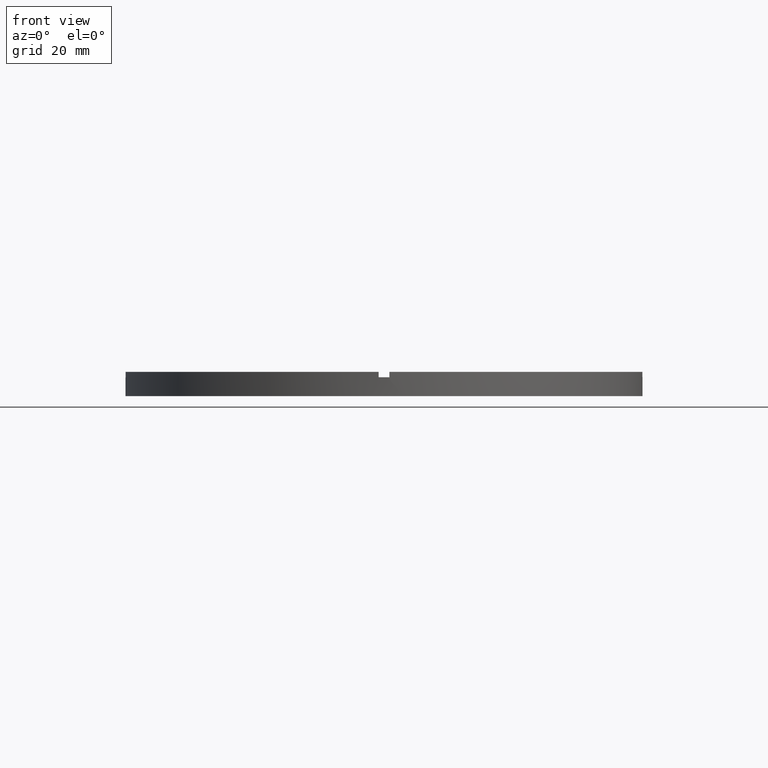
[diagram: clean part render]
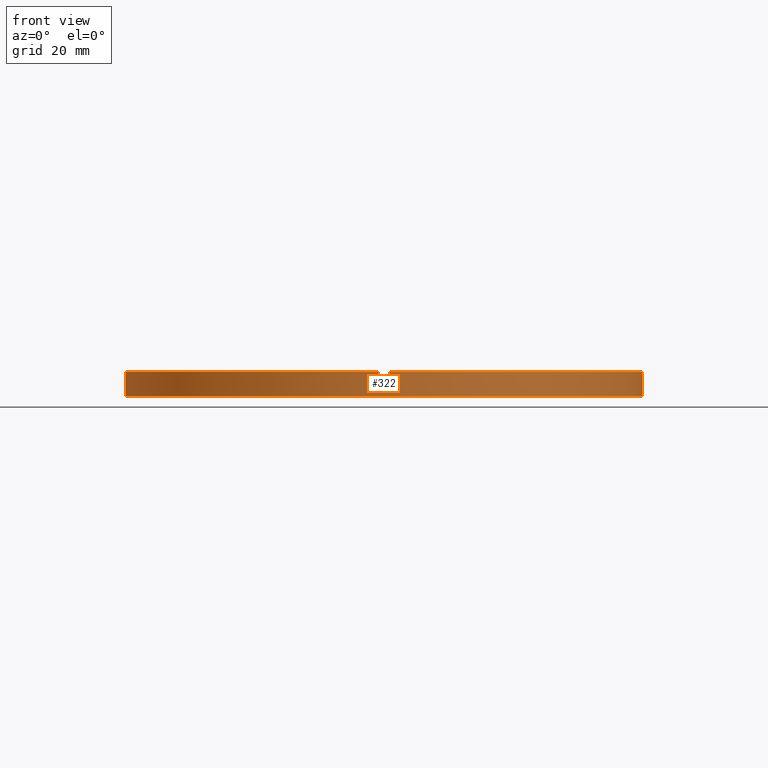
[diagram: same view with one face highlighted and labeled with its STEP entity id]
A machine part, front view. The second image highlights one B-rep face of the part: STEP entity #322.
In plain terms, the highlighted cylindrical surface (partial cylindrical patch) has radius 48 mm, axis along (-0, -0, -1).
Its self-contained STEP definition (entity closure, byte-faithful):
#1 = VERTEX_POINT ( 'NONE', #412 ) ;
#3 = CIRCLE ( 'NONE', #638, 48.00000000000000711 ) ;
#11 = EDGE_LOOP ( 'NONE', ( #658, #297, #229, #662, #458, #395, #508, #664, #455, #175, #448, #484 ) ) ;
#26 = CARTESIAN_POINT ( 'NONE',  ( 48.00000000000000711, 5.878304635907296578E-15, 4.500000000000000000 ) ) ;
#35 = LINE ( 'NONE', #26, #320 ) ;
#47 = DIRECTION ( 'NONE',  ( 0.000000000000000000, 0.000000000000000000, 1.000000000000000000 ) ) ;
#49 = DIRECTION ( 'NONE',  ( 1.000000000000000000, 0.000000000000000000, 0.000000000000000000 ) ) ;
#51 = CARTESIAN_POINT ( 'NONE',  ( -1.000000000000157208, -47.98958220280731268, 4.500000000000000000 ) ) ;
#70 = CARTESIAN_POINT ( 'NONE',  ( 0.000000000000000000, 0.000000000000000000, 0.000000000000000000 ) ) ;
#74 = DIRECTION ( 'NONE',  ( -0.000000000000000000, -0.000000000000000000, -1.000000000000000000 ) ) ;
#79 = VECTOR ( 'NONE', #678, 1000.000000000000000 ) ;
#102 = VECTOR ( 'NONE', #185, 1000.000000000000000 ) ;
#104 = DIRECTION ( 'NONE',  ( 1.000000000000000000, 0.000000000000000000, 0.000000000000000000 ) ) ;
#113 = CIRCLE ( 'NONE', #639, 48.00000000000000711 ) ;
#119 = CARTESIAN_POINT ( 'NONE',  ( -47.98958220280731268, -1.000000000000030864, 4.500000000000000000 ) ) ;
#139 = VERTEX_POINT ( 'NONE', #245 ) ;
#155 = VERTEX_POINT ( 'NONE', #444 ) ;
#157 = EDGE_CURVE ( 'NONE', #1, #731, #388, .T. ) ;
#158 = DIRECTION ( 'NONE',  ( -1.000000000000000000, 0.000000000000000000, 0.000000000000000000 ) ) ;
#160 = DIRECTION ( 'NONE',  ( 0.000000000000000000, 0.000000000000000000, 1.000000000000000000 ) ) ;
#166 = VERTEX_POINT ( 'NONE', #332 ) ;
#175 = ORIENTED_EDGE ( 'NONE', *, *, #646, .F. ) ;
#177 = EDGE_CURVE ( 'NONE', #429, #462, #113, .T. ) ;
#185 = DIRECTION ( 'NONE',  ( -0.000000000000000000, -0.000000000000000000, -1.000000000000000000 ) ) ;
#189 = CARTESIAN_POINT ( 'NONE',  ( 48.00000000000000711, 5.878304635907296578E-15, 3.499999999999999556 ) ) ;
#196 = VERTEX_POINT ( 'NONE', #189 ) ;
#197 = AXIS2_PLACEMENT_3D ( 'NONE', #70, #160, #235 ) ;
#210 = VERTEX_POINT ( 'NONE', #774 ) ;
#222 = VECTOR ( 'NONE', #350, 1000.000000000000000 ) ;
#226 = CIRCLE ( 'NONE', #324, 48.00000000000000711 ) ;
#229 = ORIENTED_EDGE ( 'NONE', *, *, #629, .T. ) ;
#235 = DIRECTION ( 'NONE',  ( 1.000000000000000000, 0.000000000000000000, 0.000000000000000000 ) ) ;
#245 = CARTESIAN_POINT ( 'NONE',  ( -47.98958220280731268, -1.000000000000030864, 3.499999999999999556 ) ) ;
#249 = LINE ( 'NONE', #488, #531 ) ;
#256 = DIRECTION ( 'NONE',  ( -0.000000000000000000, 0.000000000000000000, 1.000000000000000000 ) ) ;
#276 = EDGE_CURVE ( 'NONE', #498, #1, #649, .T. ) ;
#277 = DIRECTION ( 'NONE',  ( 1.000000000000000000, 0.000000000000000000, 0.000000000000000000 ) ) ;
#297 = ORIENTED_EDGE ( 'NONE', *, *, #610, .F. ) ;
#301 = VERTEX_POINT ( 'NONE', #620 ) ;
#311 = EDGE_CURVE ( 'NONE', #429, #139, #363, .T. ) ;
#320 = VECTOR ( 'NONE', #74, 1000.000000000000000 ) ;
#322 = ADVANCED_FACE ( 'NONE', ( #635 ), #642, .T. ) ;
#324 = AXIS2_PLACEMENT_3D ( 'NONE', #480, #550, #469 ) ;
#326 = CARTESIAN_POINT ( 'NONE',  ( 0.9999999999998427924, -47.98958220280731979, 4.500000000000000000 ) ) ;
#332 = CARTESIAN_POINT ( 'NONE',  ( 47.98958220280731268, -1.000000000000155431, 4.500000000000000000 ) ) ;
#336 = CARTESIAN_POINT ( 'NONE',  ( 48.00000000000000711, 5.878304635907296578E-15, 0.000000000000000000 ) ) ;
#340 = EDGE_CURVE ( 'NONE', #742, #210, #375, .T. ) ;
#347 = CARTESIAN_POINT ( 'NONE',  ( 47.98958220280731268, -1.000000000000155431, 4.500000000000000000 ) ) ;
#350 = DIRECTION ( 'NONE',  ( 0.000000000000000000, 0.000000000000000000, 1.000000000000000000 ) ) ;
#355 = VECTOR ( 'NONE', #365, 1000.000000000000000 ) ;
#363 = LINE ( 'NONE', #119, #355 ) ;
#365 = DIRECTION ( 'NONE',  ( -0.000000000000000000, -0.000000000000000000, -1.000000000000000000 ) ) ;
#369 = EDGE_CURVE ( 'NONE', #155, #210, #381, .T. ) ;
#372 = CARTESIAN_POINT ( 'NONE',  ( 0.000000000000000000, 0.000000000000000000, 4.500000000000000000 ) ) ;
#375 = LINE ( 'NONE', #326, #102 ) ;
#381 = CIRCLE ( 'NONE', #637, 48.00000000000000711 ) ;
#388 = CIRCLE ( 'NONE', #197, 48.00000000000000711 ) ;
#395 = ORIENTED_EDGE ( 'NONE', *, *, #369, .F. ) ;
#402 = EDGE_CURVE ( 'NONE', #742, #166, #538, .T. ) ;
#412 = CARTESIAN_POINT ( 'NONE',  ( -48.00000000000000711, 0.000000000000000000, 0.000000000000000000 ) ) ;
#420 = DIRECTION ( 'NONE',  ( -0.000000000000000000, -0.000000000000000000, -1.000000000000000000 ) ) ;
#421 = AXIS2_PLACEMENT_3D ( 'NONE', #572, #427, #104 ) ;
#427 = DIRECTION ( 'NONE',  ( 0.000000000000000000, 0.000000000000000000, 1.000000000000000000 ) ) ;
#429 = VERTEX_POINT ( 'NONE', #728 ) ;
#438 = CARTESIAN_POINT ( 'NONE',  ( 0.000000000000000000, 0.000000000000000000, 4.500000000000000000 ) ) ;
#444 = CARTESIAN_POINT ( 'NONE',  ( -1.000000000000157208, -47.98958220280731268, 3.499999999999999556 ) ) ;
#448 = ORIENTED_EDGE ( 'NONE', *, *, #276, .T. ) ;
#455 = ORIENTED_EDGE ( 'NONE', *, *, #311, .T. ) ;
#458 = ORIENTED_EDGE ( 'NONE', *, *, #340, .T. ) ;
#462 = VERTEX_POINT ( 'NONE', #51 ) ;
#469 = DIRECTION ( 'NONE',  ( 1.000000000000000000, 0.000000000000000000, 0.000000000000000000 ) ) ;
#480 = CARTESIAN_POINT ( 'NONE',  ( 0.000000000000000000, 0.000000000000000000, 3.499999999999999556 ) ) ;
#484 = ORIENTED_EDGE ( 'NONE', *, *, #157, .T. ) ;
#487 = CARTESIAN_POINT ( 'NONE',  ( 0.000000000000000000, 0.000000000000000000, 3.499999999999999556 ) ) ;
#488 = CARTESIAN_POINT ( 'NONE',  ( -1.000000000000157208, -47.98958220280731268, 4.500000000000000000 ) ) ;
#498 = VERTEX_POINT ( 'NONE', #562 ) ;
#504 = CARTESIAN_POINT ( 'NONE',  ( -48.00000000000000711, 0.000000000000000000, 4.500000000000000000 ) ) ;
#508 = ORIENTED_EDGE ( 'NONE', *, *, #717, .T. ) ;
#531 = VECTOR ( 'NONE', #47, 1000.000000000000000 ) ;
#538 = CIRCLE ( 'NONE', #421, 48.00000000000000711 ) ;
#544 = DIRECTION ( 'NONE',  ( 0.000000000000000000, 0.000000000000000000, 1.000000000000000000 ) ) ;
#550 = DIRECTION ( 'NONE',  ( 0.000000000000000000, 0.000000000000000000, 1.000000000000000000 ) ) ;
#562 = CARTESIAN_POINT ( 'NONE',  ( -48.00000000000000711, 0.000000000000000000, 3.499999999999999556 ) ) ;
#572 = CARTESIAN_POINT ( 'NONE',  ( 0.000000000000000000, 0.000000000000000000, 4.500000000000000000 ) ) ;
#582 = DIRECTION ( 'NONE',  ( 0.000000000000000000, 0.000000000000000000, 1.000000000000000000 ) ) ;
#592 = CARTESIAN_POINT ( 'NONE',  ( 0.000000000000000000, 0.000000000000000000, 3.499999999999999556 ) ) ;
#594 = DIRECTION ( 'NONE',  ( 1.000000000000000000, 0.000000000000000000, 0.000000000000000000 ) ) ;
#610 = EDGE_CURVE ( 'NONE', #301, #196, #3, .T. ) ;
#614 = AXIS2_PLACEMENT_3D ( 'NONE', #372, #420, #158 ) ;
#620 = CARTESIAN_POINT ( 'NONE',  ( 47.98958220280731268, -1.000000000000155431, 3.499999999999999556 ) ) ;
#629 = EDGE_CURVE ( 'NONE', #301, #166, #764, .T. ) ;
#635 = FACE_OUTER_BOUND ( 'NONE', #11, .T. ) ;
#637 = AXIS2_PLACEMENT_3D ( 'NONE', #592, #256, #277 ) ;
#638 = AXIS2_PLACEMENT_3D ( 'NONE', #487, #544, #49 ) ;
#639 = AXIS2_PLACEMENT_3D ( 'NONE', #438, #582, #594 ) ;
#642 = CYLINDRICAL_SURFACE ( 'NONE', #614, 48.00000000000000711 ) ;
#646 = EDGE_CURVE ( 'NONE', #498, #139, #226, .T. ) ;
#649 = LINE ( 'NONE', #504, #79 ) ;
#658 = ORIENTED_EDGE ( 'NONE', *, *, #753, .F. ) ;
#662 = ORIENTED_EDGE ( 'NONE', *, *, #402, .F. ) ;
#664 = ORIENTED_EDGE ( 'NONE', *, *, #177, .F. ) ;
#678 = DIRECTION ( 'NONE',  ( -0.000000000000000000, -0.000000000000000000, -1.000000000000000000 ) ) ;
#688 = CARTESIAN_POINT ( 'NONE',  ( 0.9999999999998427924, -47.98958220280731979, 4.500000000000000000 ) ) ;
#717 = EDGE_CURVE ( 'NONE', #155, #462, #249, .T. ) ;
#728 = CARTESIAN_POINT ( 'NONE',  ( -47.98958220280731268, -1.000000000000030864, 4.500000000000000000 ) ) ;
#731 = VERTEX_POINT ( 'NONE', #336 ) ;
#742 = VERTEX_POINT ( 'NONE', #688 ) ;
#753 = EDGE_CURVE ( 'NONE', #196, #731, #35, .T. ) ;
#764 = LINE ( 'NONE', #347, #222 ) ;
#774 = CARTESIAN_POINT ( 'NONE',  ( 0.9999999999998427924, -47.98958220280731979, 3.499999999999999556 ) ) ;